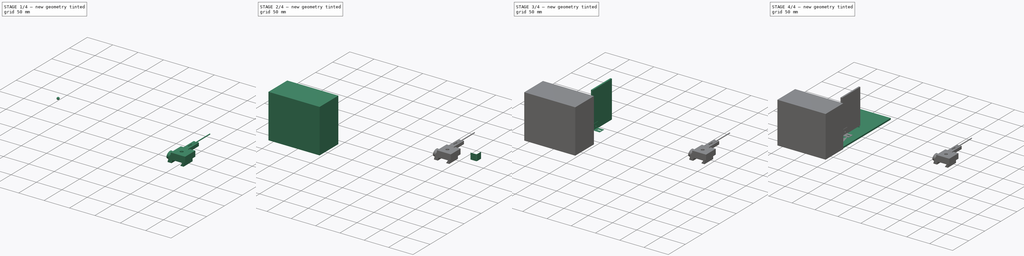
[diagram: build sequence overview — one tinted view per stage of 4, left to right]
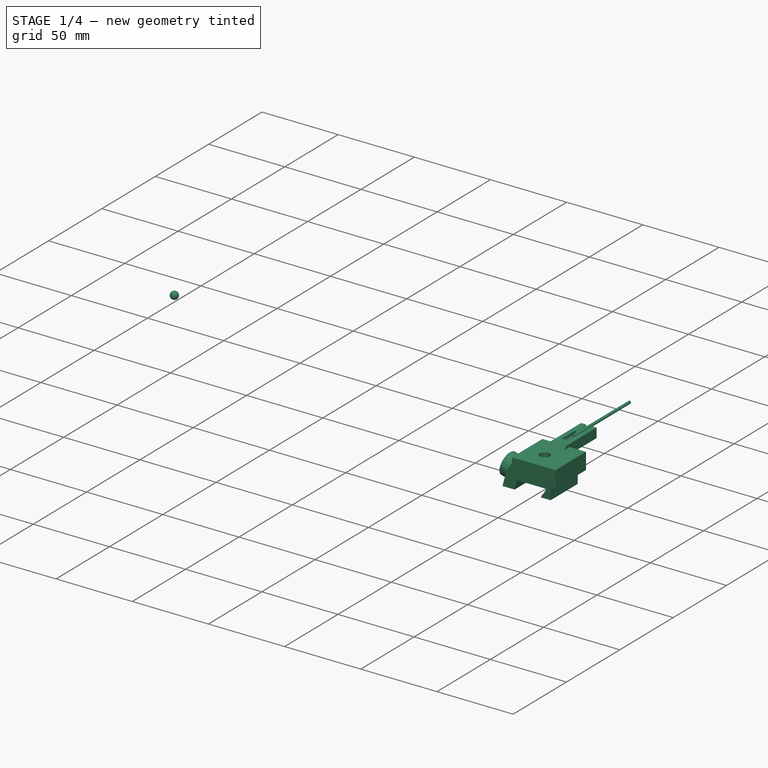
[diagram: stage 1 of 4 — iso view after this stage's code; geometry added in this stage tinted green]
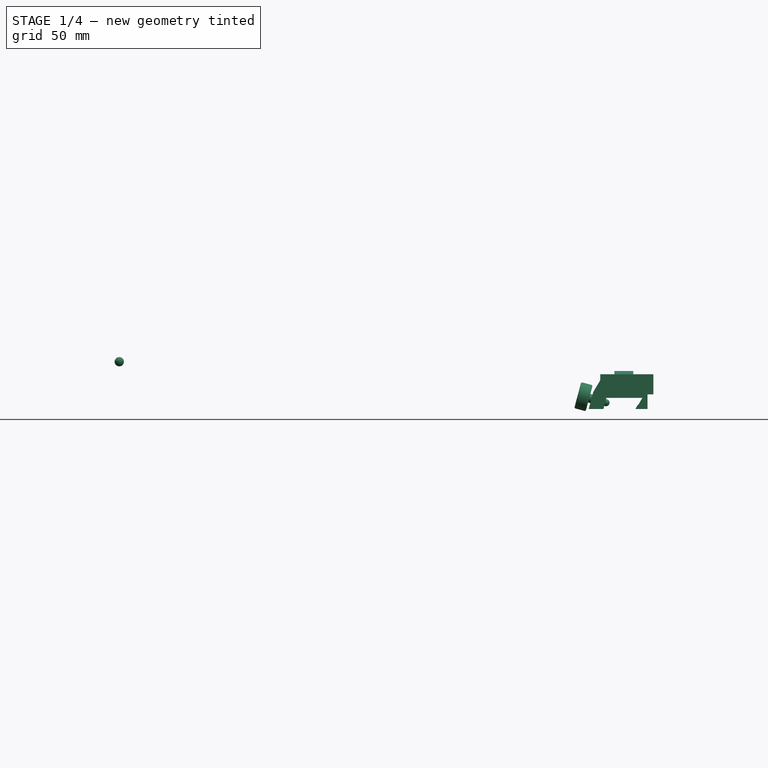
[diagram: stage 1 of 4 — front view after this stage's code; geometry added in this stage tinted green]
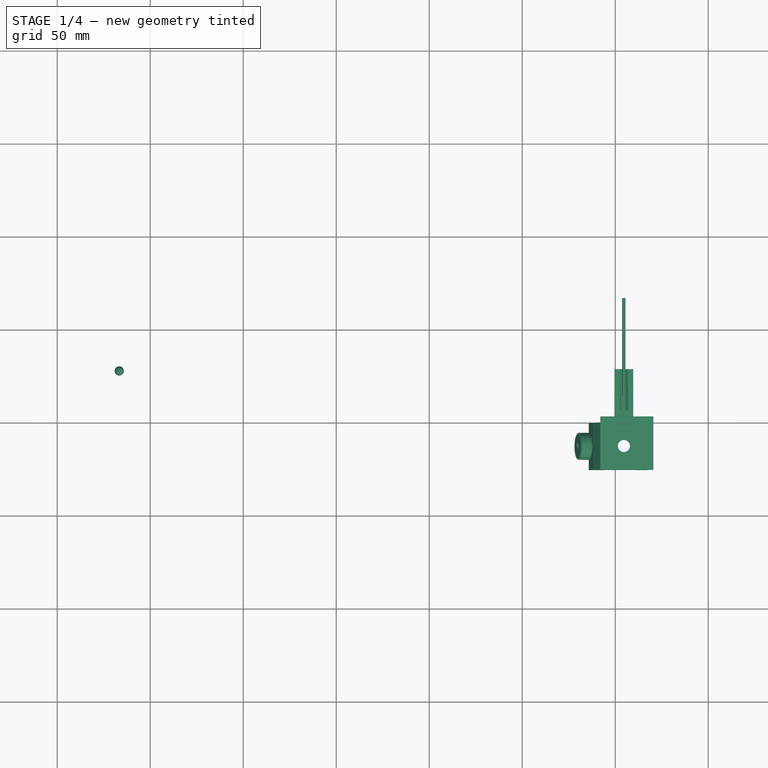
[diagram: stage 1 of 4 — top view after this stage's code; geometry added in this stage tinted green]
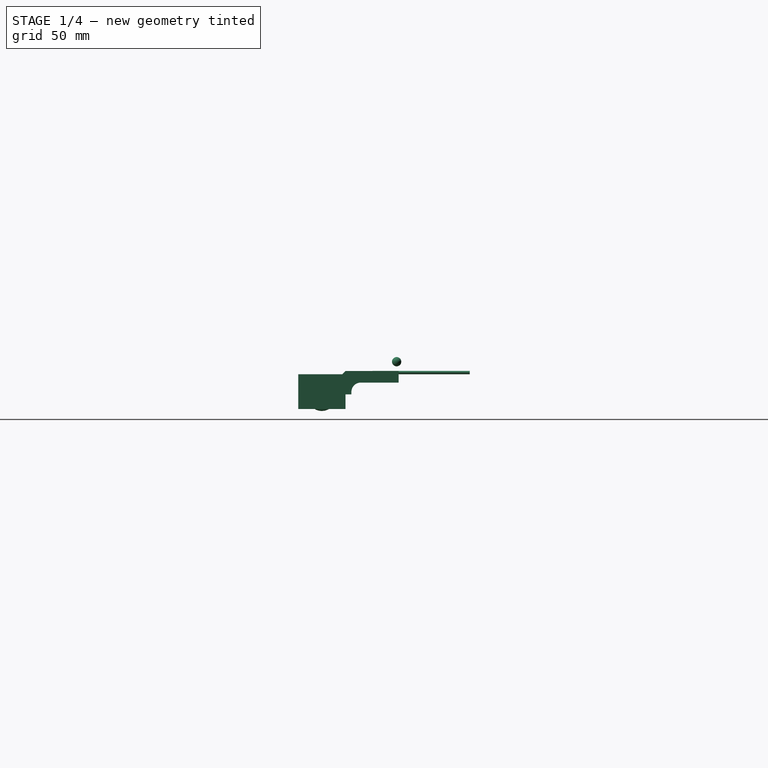
[diagram: stage 1 of 4 — right view after this stage's code; geometry added in this stage tinted green]
FCSTD DOCUMENT  (FreeCAD 0.17R13522 (Git))
Label: Rig base model
License: All rights reserved
LicenseURL: http://en.wikipedia.org/wiki/All_rights_reserved
objects: Part::Feature×37, App::Part×8, Sketcher::SketchObject×5, PartDesign::Pad×3, PartDesign::Body×3, Part::Sphere×3, PartDesign::Pocket×2, Part::MultiFuse×1, Part::Mirroring×1, Part::Box×1, Part::FeaturePython×1, Part::Compound×1
note: 63 computed .brp shape members not serialized (recipe doc carries the construction recipe); baked Part::Feature solids carry a one-line shape summary decoded from their .brp

FEATURE [Part::Feature] Part__Feature016010  label="0336-E0W002"
  Placement = pos=(304.8,25.4,-25.4) rot=(1,0,0;1.5708rad)
  shape: bbox 12.69 x 12.69 x 80.34 mm, 56 faces, 2 solids (baked)
FEATURE [Part::Feature] Part__Feature016011  label="0783-E0W002"
  Placement = pos=(304.8,12.7,55.626) rot=(0,0.707107,0.707107;3.14159rad)
  shape: bbox 19.05 x 76.2 x 9.525 mm, 875 faces (baked)
FEATURE [Part::Feature] Part__Feature016012  label="0811-E0W"
  Placement = pos=(285.75,0,54.102) rot=(0.57735,-0.57735,-0.57735;2.0944rad)
  shape: bbox 39.23 x 25.4 x 16.53 mm, 296 faces, 6 solids (baked)
FEATURE [Part::Feature] Pad003001  label="Lick spout holder"
  Placement = pos=(291.948,0,69.596) rot=(0.57735,0.57735,0.57735;2.0944rad)
  shape: bbox 28.58 x 53.98 x 12.61 mm, 35 faces (baked)
FEATURE [Sketcher::SketchObject] Sketch023  label="Spout"
  MapMode = 5
  Placement = pos=(28.575,0,0) rot=(0.57735,0.57735,0.57735;2.0944rad)
  expr: Constraints[0] = 0.071999999999999995" / 2
  sketch-geometry (1):
    g0: Circle CenterX=4.09329 CenterY=12.7 CenterZ=0 NormalX=0 NormalY=0 NormalZ=1 AngleXU=0 Radius=0.9144
  constraints (1):
    c: Radius(g0) = 0.9144
FEATURE [PartDesign::Pad] Pad003002
  Length = 14.2875
  Length2 = 38.1
  Placement = pos=(28.575,0,0) rot=(0.57735,0.57735,0.57735;2.0944rad)
  Profile = -> Sketch023
  Type = 4
  expr: Length = 2" + 1" / 16 - 1.5"
  expr: Length2 = 1.5"
FEATURE [Part::Sphere] Sphere002  label="LED"
  Angle1 = -90
  Angle2 = 90
  Angle3 = 360
  AttacherType = Attacher::AttachEngine3D
  Placement = pos=(33.3553,27.5082,79.5528) rot=(0,0,1;0rad)
  Radius = 2.5
  expr: Placement.Base.x = 5.5940000000000003" + 0.34510000000000002" * 2
  expr: Radius = 5mm / 2
FEATURE [Part::Feature] Part__Feature016013001  label="0335-E0W001"
  Placement = pos=(0.00434,-0.02736,-50.7568) rot=(1,0,0;1.5708rad)
  shape: bbox 12.69 x 12.69 x 54.94 mm, 56 faces, 2 solids (baked)
FEATURE [App::Part] Part005  label="Strobe light"
  Group = -> [Box001,Sphere002,Array,Part__Feature016013001]
  Origin = -> Origin009
  Placement = pos=(127,0,-38.1) rot=(0,0,-1;0.959931rad)
FEATURE [Part::Compound] Compound001  label="Spout mount compound"
  Links = -> [Part__Feature016012,Body002,Pad003001]
FEATURE [App::Part] Part003  label="Spout assembly"
  Group = -> [Part__Feature016010,Part__Feature016011,Part004,Body002,Part__Feature016012,Pad003001,Compound001]
  Origin = -> Origin006
  Placement = pos=(0,0,-35.56) rot=(0,0,1;0rad)
FEATURE [Part::Feature] Part__Mirroring001  label="Rig wall assembly (Mirror #1)001"
  Placement = pos=(0,0,0) rot=(0,0,1;3.14159rad)
  shape: bbox 15.9 x 57.07 x 76.12 mm, 23 faces, 2 solids (baked)
FEATURE [App::Part] Part  label="Platform"
  Group = -> [Pocket001001,Sphere,Sphere001,Body001,Fusion,Body,Extrude001,Part__Mirroring,Part__Mirroring001]
  Origin = -> Origin
  Placement = pos=(304.8,88.9,12.7) rot=(0,0,1;0rad)
FEATURE [App::Part] Part006  label="Rig"
  Group = -> [Part,MB1218,Part001,Part002,Part003,Part005]
  Origin = -> Origin010
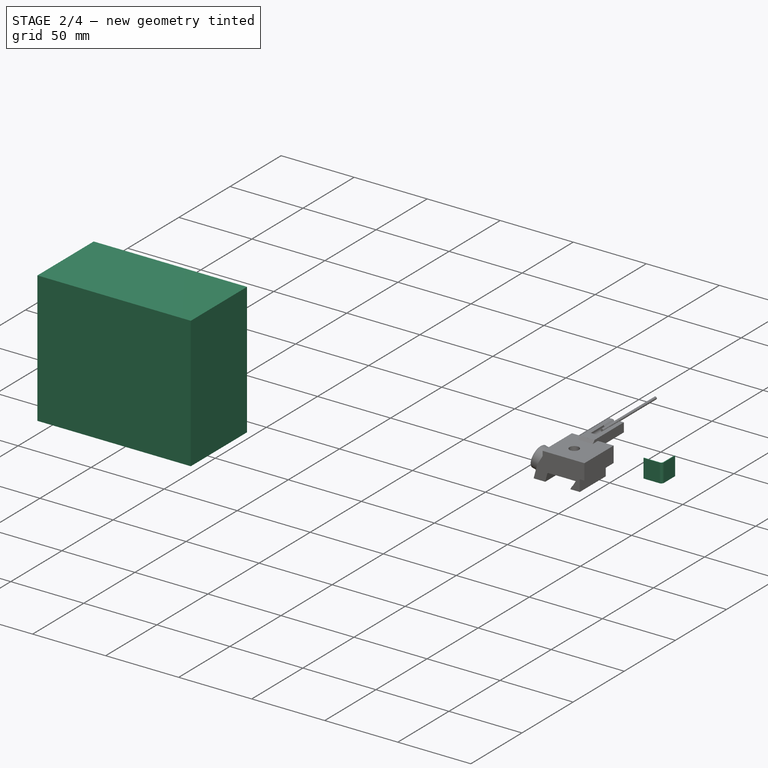
[diagram: stage 2 of 4 — iso view after this stage's code; geometry added in this stage tinted green]
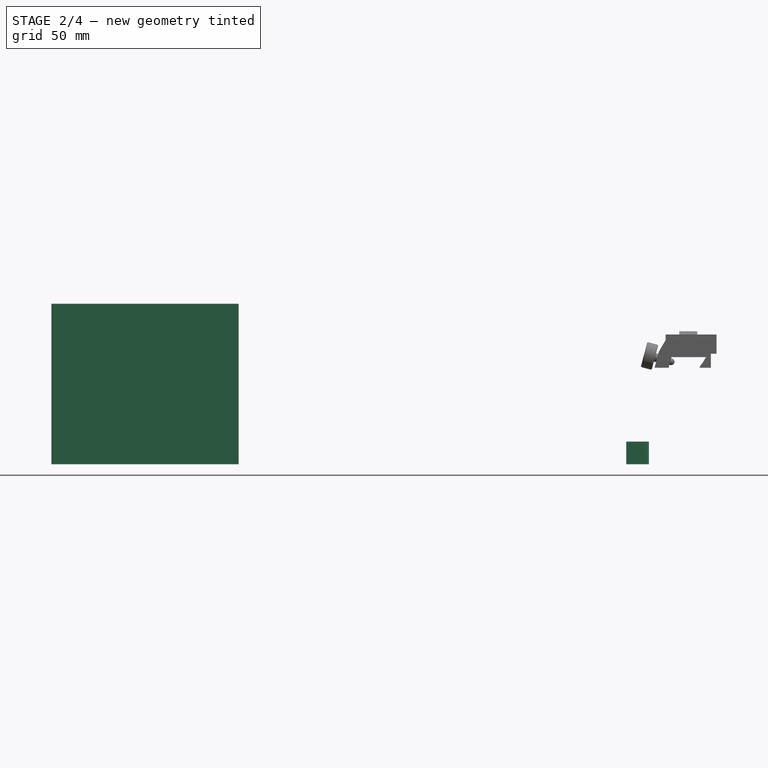
[diagram: stage 2 of 4 — front view after this stage's code; geometry added in this stage tinted green]
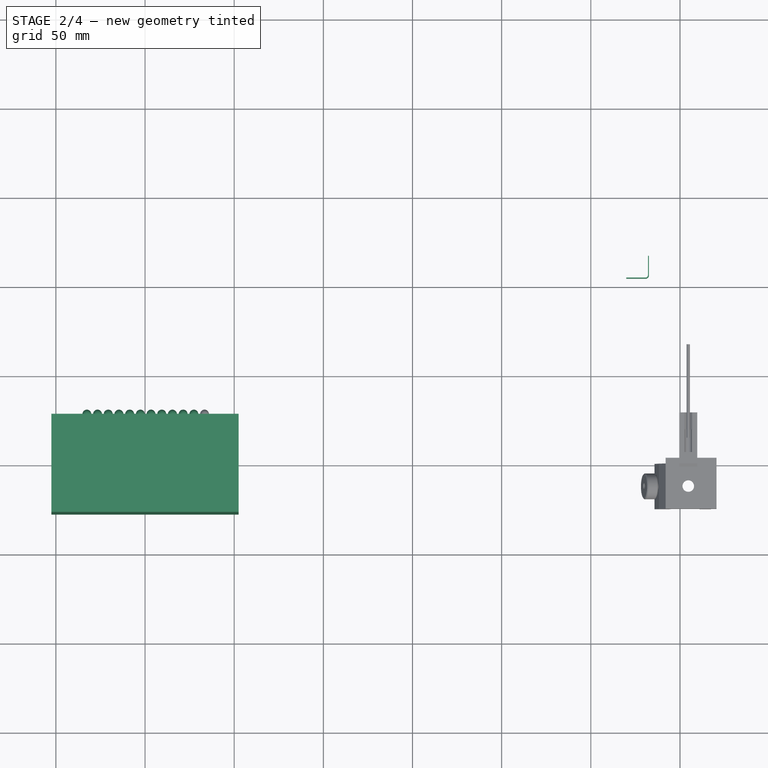
[diagram: stage 2 of 4 — top view after this stage's code; geometry added in this stage tinted green]
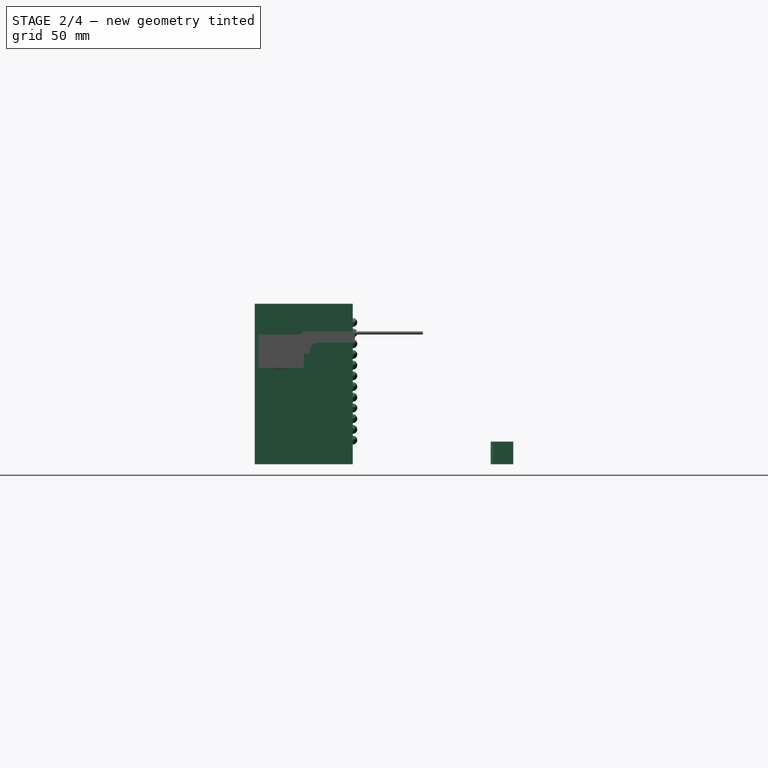
[diagram: stage 2 of 4 — right view after this stage's code; geometry added in this stage tinted green]
FEATURE [Part::Feature] Part__Feature  label="MB1218 - Aluminium Breadboard 304.8 x 457.2 x 12.7mm_MB3030_M-1"
  Placement = pos=(215.9,0,-139.7) rot=(0,0,1;0rad)
  shape: bbox 457.2 x 12.7 x 304.8 mm, 1603 faces (baked)
FEATURE [Part::Feature] Part__Feature001  label="0337-E0W"
  Placement = pos=(279.4,12.7,-127) rot=(0,0,1;0rad)
  shape: bbox 12.69 x 105.7 x 12.69 mm, 56 faces, 2 solids (baked)
  expr: Placement.Base.z = -5"
FEATURE [Part::Feature] Part__Feature002  label="0337-E0W001"
  Placement = pos=(279.4,12.7,-254) rot=(0,0,1;0rad)
  shape: bbox 12.69 x 105.7 x 12.69 mm, 56 faces, 2 solids (baked)
FEATURE [Part::Feature] Part__Feature003  label="0337-E0W002"
  Placement = pos=(330.2,12.7,-127) rot=(0,0,1;0rad)
  shape: bbox 12.69 x 105.7 x 12.69 mm, 56 faces, 2 solids (baked)
FEATURE [Part::Feature] Part__Feature004  label="0337-E0W003"
  Placement = pos=(330.2,12.7,-203.2) rot=(0,0,1;0rad)
  shape: bbox 12.69 x 105.7 x 12.69 mm, 56 faces, 2 solids (baked)
FEATURE [Part::Feature] Part__Feature005  label="0489-E0W"
  Placement = pos=(127,25.4,0) rot=(0,0,1;0rad)
  shape: bbox 25.01 x 25.41 x 35.42 mm, 362 faces, 6 solids (baked)
FEATURE [Part::Feature] Part__Feature006  label="0497-E0W"
  Placement = pos=(203.2,63.5,-177.8) rot=(0,0,1;0rad)
  shape: bbox 25.01 x 101.6 x 35.42 mm, 362 faces, 6 solids (baked)
FEATURE [Part::Feature] Part__Feature007  label="0497-E0W001"
  Placement = pos=(406.4,63.5,-177.8) rot=(0,0,1;0rad)
  shape: bbox 25.01 x 101.6 x 35.42 mm, 362 faces, 6 solids (baked)
FEATURE [Part::Feature] Part__Feature008  label="0495-E0W"
  Placement = pos=(177.8,50.8,-177.8) rot=(0,0,1;0rad)
  shape: bbox 25.01 x 76.21 x 35.42 mm, 362 faces, 6 solids (baked)
FEATURE [Part::Feature] Part__Feature009  label="0495-E0W001"
  Placement = pos=(431.8,50.8,-177.8) rot=(0,0,1;0rad)
  shape: bbox 25.01 x 76.21 x 35.42 mm, 362 faces, 6 solids (baked)
FEATURE [Part::Feature] Part__Feature010  label="0251-E0W"
  Placement = pos=(322.743,12.7,-23.2105) rot=(-1,0,0;1.5708rad)
  shape: bbox 69.95 x 32.77 x 62.23 mm, 3160 faces, 6 solids (baked)
  expr: Placement.Base.z = -1" + 0.086199999999999999"
  expr: Placement.Base.x = 1' - 0.29360000000000003" + 1"
FEATURE [Part::Feature] Part__Feature011  label="0495-E0W002"
  Placement = pos=(304.8,66.802,-25.4) rot=(0,0,1;0rad)
  shape: bbox 25.01 x 76.21 x 35.42 mm, 362 faces, 6 solids (baked)
FEATURE [Part::Feature] Part__Feature012  label="18785-E0W"
  Placement = pos=(50.8,203.2,-228.6) rot=(1,0,0;1.5708rad)
  shape: bbox 24.99 x 381 x 24.99 mm, 73 faces (baked)
FEATURE [App::Part] MB1218  label="Rig base"
  Group = -> [Part__Feature,Part__Feature001,Part__Feature002,Part__Feature003,Part__Feature004,Part__Feature005,Part__Feature006,Part__Feature007,Part__Feature008,Part__Feature009,Part__Feature010,Part__Feature011,Part__Feature012]
  Origin = -> Origin002
  Placement = pos=(0,0,-101.6) rot=(1,0,0;1.5708rad)
FEATURE [Part::Feature] Part__Feature013  label="0337-E0W004"
  Placement = pos=(0,25.4,-4.8768) rot=(-1,0,0;1.5708rad)
  shape: bbox 12.69 x 12.69 x 105.7 mm, 56 faces, 2 solids (baked)
FEATURE [Part::Feature] Part__Feature014  label="0336-E0W"
  Placement = pos=(25.4,25.4,-4.8768) rot=(0,0.707107,-0.707107;3.14159rad)
  shape: bbox 12.69 x 12.69 x 80.34 mm, 56 faces, 2 solids (baked)
FEATURE [Part::Feature] Part__Feature015  label="0812-E0W"
  Placement = pos=(76.2,-38.1,11.1252) rot=(0,0.707107,-0.707107;3.14159rad)
  shape: bbox 50.8 x 39.23 x 16.53 mm, 310 faces, 6 solids (baked)
FEATURE [Part::Feature] Part__Feature016  label="0785-E0W"
  Placement = pos=(25.4,-50.8,9.652) rot=(0.57735,-0.57735,0.57735;4.18879rad)
  shape: bbox 152.4 x 19.05 x 9.525 mm, 1483 faces (baked)
FEATURE [Part::Feature] Part__Feature017  label="0783-E0W"
  Placement = pos=(12.7,50.8,9.652) rot=(0.57735,0.57735,0.57735;2.0944rad)
  shape: bbox 76.2 x 19.05 x 9.525 mm, 875 faces (baked)
FEATURE [Part::Feature] Fillet001  label="Headfixing clamp"
  Placement = pos=(115.824,-50.8,-4.3942) rot=(0.707107,0.707107,0;3.14159rad)
  shape: bbox 68.58 x 19.05 x 6.35 mm, 34 faces (baked)
FEATURE [Part::Feature] Part__Feature016001  label="0785-E0W001"
  Placement = pos=(0,0,0) rot=(0,0.707107,0.707107;3.14159rad)
  shape: bbox 19.05 x 152.4 x 9.525 mm, 1483 faces (baked)
FEATURE [Part::Feature] Part__Feature016002  label="0785-E0W002"
  Placement = pos=(25.4,0,0) rot=(0,0.707107,0.707107;3.14159rad)
  shape: bbox 19.05 x 152.4 x 9.525 mm, 1483 faces (baked)
FEATURE [App::Part] Part001  label="Headfixing assembly"
  Group = -> [Part__Feature013,Part__Feature014,Part__Feature015,Part__Feature016,Part__Feature017,Fillet001,Part__Feature016001,Part__Feature016002]
  Origin = -> Origin003
  Placement = pos=(177.8,152.4,57.15) rot=(0,0,1;0rad)
FEATURE [Part::Feature] Fillet002  label="Headfixing clamp001"
  Placement = pos=(-90.424,-50.8,-4.3942) rot=(0.707107,-0.707107,0;3.14159rad)
  shape: bbox 68.58 x 19.05 x 6.35 mm, 34 faces (baked)
FEATURE [Part::Feature] Part__Feature016003  label="0785-E0W003"
  Placement = pos=(25.4,0,0) rot=(0,0.707107,0.707107;3.14159rad)
  shape: bbox 19.05 x 152.4 x 9.525 mm, 1483 faces (baked)
FEATURE [Part::Feature] Part__Feature016004  label="0785-E0W004"
  Placement = pos=(0,0,0) rot=(0,0.707107,0.707107;3.14159rad)
  shape: bbox 19.05 x 152.4 x 9.525 mm, 1483 faces (baked)
FEATURE [Part::Feature] Part__Feature016005  label="0783-E0W001"
  Placement = pos=(12.7,50.8,9.652) rot=(0.57735,0.57735,0.57735;2.0944rad)
  shape: bbox 76.2 x 19.05 x 9.525 mm, 875 faces (baked)
FEATURE [Part::Feature] Part__Feature016006  label="0337-E0W005"
  Placement = pos=(25.4,25.4,-4.8768) rot=(-1,0,0;1.5708rad)
  shape: bbox 12.69 x 12.69 x 105.7 mm, 56 faces, 2 solids (baked)
FEATURE [Part::Feature] Part__Feature016007  label="0336-E0W001"
  Placement = pos=(0,25.4,-4.8768) rot=(0,0.707107,-0.707107;3.14159rad)
  shape: bbox 12.69 x 12.69 x 80.34 mm, 56 faces, 2 solids (baked)
FEATURE [Part::Feature] Part__Feature016008  label="0785-E0W005"
  Placement = pos=(0,-50.8,9.652) rot=(0.57735,-0.57735,0.57735;4.18879rad)
  shape: bbox 152.4 x 19.05 x 9.525 mm, 1483 faces (baked)
FEATURE [Part::Feature] Part__Feature016009  label="0812-E0W001"
  Placement = pos=(-50.8,-38.1,11.1252) rot=(0,0.707107,-0.707107;3.14159rad)
  shape: bbox 50.8 x 39.23 x 16.53 mm, 310 faces, 6 solids (baked)
FEATURE [App::Part] Part002  label="Headfixing assembly001"
  Group = -> [Part__Feature016006,Part__Feature016007,Part__Feature016009,Part__Feature016008,Part__Feature016005,Fillet002,Part__Feature016004,Part__Feature016003]
  Origin = -> Origin004
  Placement = pos=(406.4,152.4,57.15) rot=(0,0,1;0rad)
FEATURE [Part::Feature] Extrude001  label="Rig wall"
  Placement = pos=(285.75,280.34,-114.3) rot=(0,1,0;1.5708rad)
  shape: bbox 3.175 x 76.12 x 57.07 mm, 8 faces (baked)
FEATURE [Sketcher::SketchObject] Sketch  label="Wall bracket"
  MapMode = 5
  sketch-geometry (8):
    g0: LineSegment StartX=280.768 StartY=105.309 StartZ=0 EndX=269.846 EndY=105.309 EndZ=0
    g1: LineSegment StartX=269.846 StartY=105.309 StartZ=0 EndX=269.846 EndY=104.801 EndZ=0
    g2: LineSegment StartX=269.846 StartY=104.801 StartZ=0 EndX=280.768 EndY=104.801 EndZ=0
    g3: LineSegment StartX=282.546 StartY=106.579 StartZ=0 EndX=282.546 EndY=117.501 EndZ=0
    g4: LineSegment StartX=282.038 StartY=117.501 StartZ=0 EndX=282.038 EndY=106.579 EndZ=0
    g5: ArcOfCircle CenterX=280.768 CenterY=106.579 CenterZ=0 NormalX=0 NormalY=0 NormalZ=1 AngleXU=0 Radius=1.27 StartAngle=4.71239 EndAngle=6.28319
    g6: ArcOfCircle CenterX=280.768 CenterY=106.579 CenterZ=0 NormalX=0 NormalY=0 NormalZ=1 AngleXU=0 Radius=1.778 StartAngle=4.71239 EndAngle=6.28319
    g7: LineSegment StartX=282.038 StartY=117.501 StartZ=0 EndX=282.546 EndY=117.501 EndZ=0
  constraints (24):
    c: Coincident(g0,g1)
    c: Coincident(g1,g2)
    c: Coincident(g3,g6)
    c: Coincident(g4,g5)
    c: Coincident(g0,g5)
    c: Coincident(g2,g6)
    c: Horizontal(g2)
    c: Vertical(g3)
    c: Horizontal(g0)
    c: Vertical(g4)
    c: Vertical(g1)
    c: DistanceX(g2,g6) = 0
    c: DistanceY(g6,g3) = 0
    c: DistanceX(g5,g0) = 0
    c: DistanceY(g1,g1) = 0.508
    c: DistanceX(g2,g0) = 0
    c: DistanceY(g1,g3) = 12.7
    c: DistanceX(g1,g3) = 12.7
    c: Coincident(g3,g7)
    c: Coincident(g4,g7)
    c: Horizontal(g7)
    c: Equal(g7,g1)
    c: DistanceY(g3,g4) = 0
    c: Radius(g5) = 1.27
FEATURE [PartDesign::Pad] Pad001
  Length = 12.7
  Length2 = 99.9998
  Profile = -> Sketch
  Type = 0
FEATURE [PartDesign::Body] Body002  label="Spout001"
  Group = -> [Sketch023,Pad003002]
  Origin = -> Origin007
  Placement = pos=(291.948,23.9522,69.596) rot=(0.57735,0.57735,0.57735;2.0944rad)
  Tip = -> Pad003002
FEATURE [App::Part] Part004  label="Spout mount"
  Origin = -> Origin008
  Placement = pos=(0,30.1244,0) rot=(0,0,1;0rad)
FEATURE [Part::Box] Box001  label="Cube001"
  AttacherType = Attacher::AttachEngine3D
  Height = 90
  Length = 105
  Placement = pos=(-52.5,-27.5,0) rot=(0,0,1;0rad)
  Width = 55
  expr: Placement.Base.x = -52.5mm
FEATURE [Part::FeaturePython] Array  # Draft array (typed FeaturePython)
  Angle = 360
  ArrayType = 0
  Axis = (0,0,1)
  Base = -> Sphere002
  Center = (0,0,0)
  Fuse = false
  IntervalAxis = (0,0,0)
  IntervalX = (-5.99948,0,0)
  IntervalY = (0,0,0)
  IntervalZ = (0,0,-6)
  NumberPolar = 1
  NumberX = 12
  NumberY = 1
  NumberZ = 12
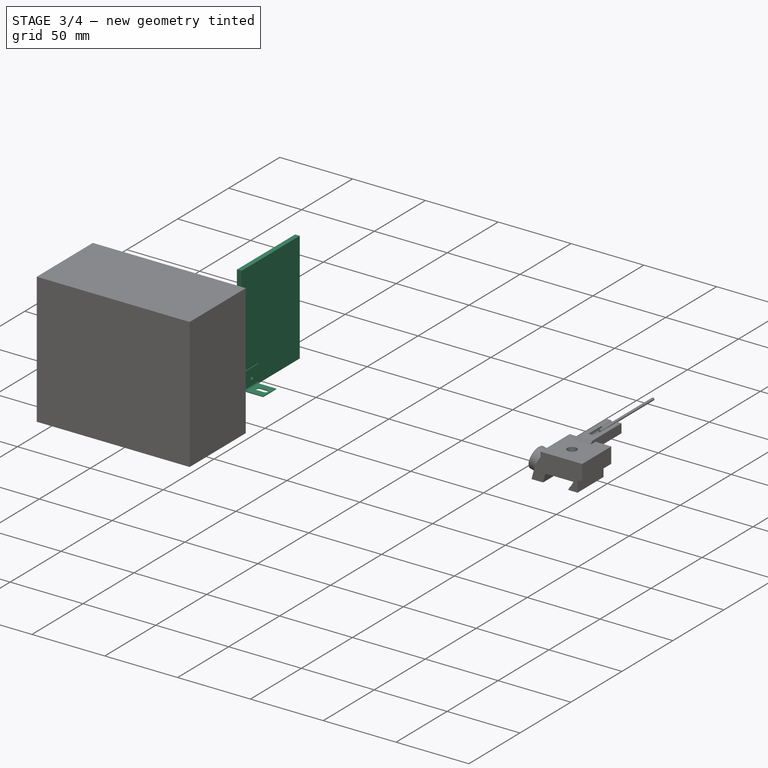
[diagram: stage 3 of 4 — iso view after this stage's code; geometry added in this stage tinted green]
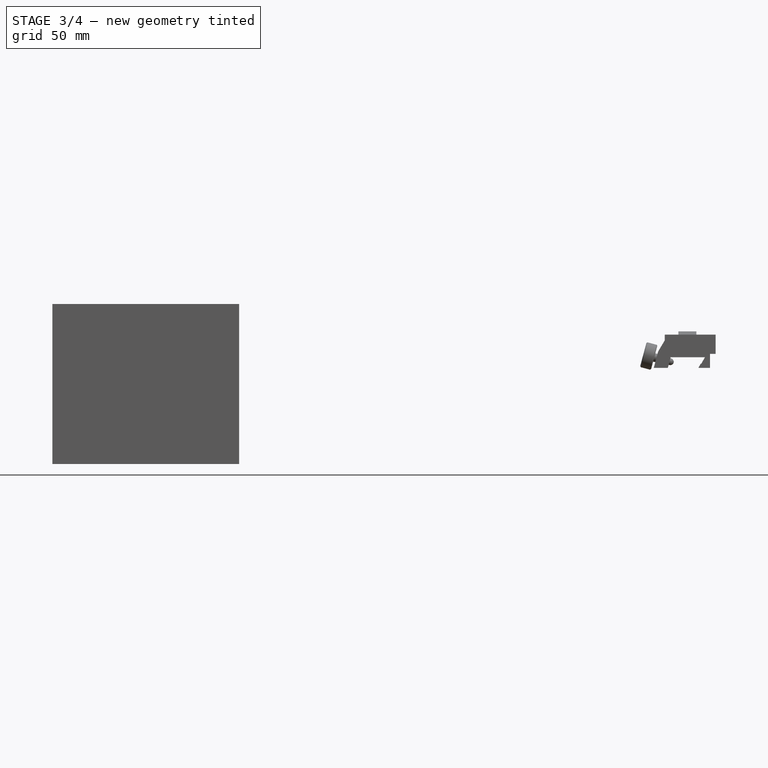
[diagram: stage 3 of 4 — front view after this stage's code; geometry added in this stage tinted green]
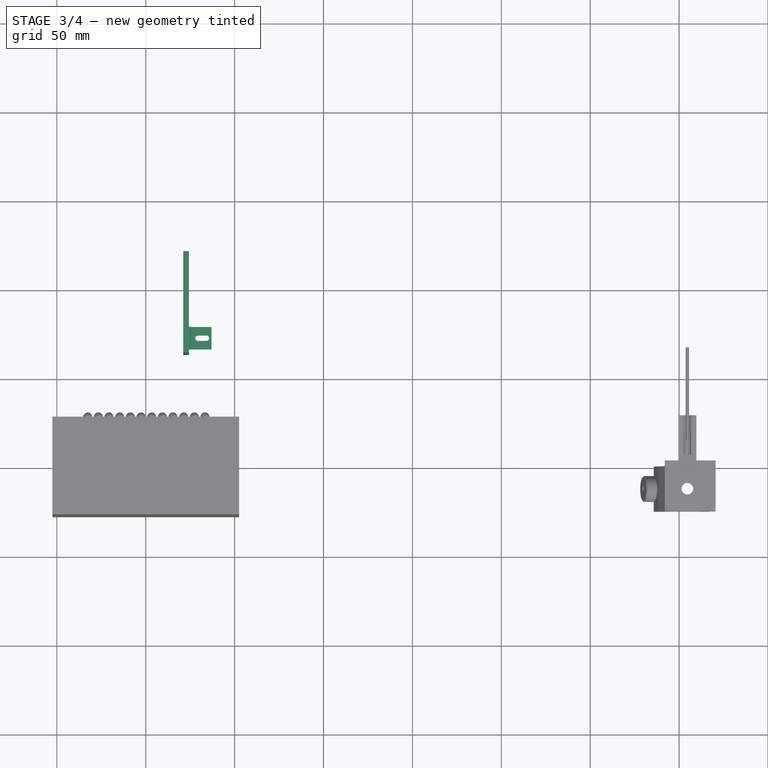
[diagram: stage 3 of 4 — top view after this stage's code; geometry added in this stage tinted green]
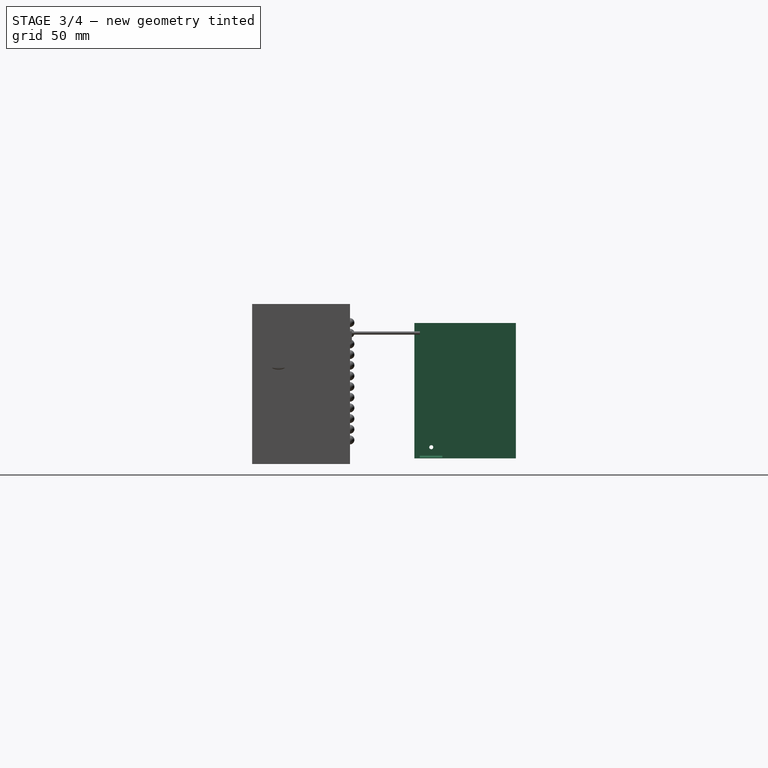
[diagram: stage 3 of 4 — right view after this stage's code; geometry added in this stage tinted green]
FEATURE [Sketcher::SketchObject] Sketch021  label="Bracket slot"
  ExternalGeometry = -> [Pad001]
  MapMode = 5
  Placement = pos=(0,105.309,0) rot=(0,0.707107,0.707107;3.14159rad)
  Support = -> [Pad001]
  sketch-geometry (5):
    g0: ArcOfCircle CenterX=-277.466 CenterY=6.35 CenterZ=0 NormalX=0 NormalY=0 NormalZ=1 AngleXU=0 Radius=1.50515 StartAngle=1.5708 EndAngle=4.71239
    g1: ArcOfCircle CenterX=-272.688 CenterY=6.35 CenterZ=0 NormalX=0 NormalY=0 NormalZ=1 AngleXU=0 Radius=1.50515 StartAngle=4.71239 EndAngle=7.85398
    g2: LineSegment StartX=-277.466 StartY=4.84485 StartZ=0 EndX=-272.688 EndY=4.84485 EndZ=0
    g3: LineSegment StartX=-277.466 StartY=7.85515 StartZ=0 EndX=-272.688 EndY=7.85515 EndZ=0
    g4: LineSegment [constr] StartX=-269.846 StartY=6.35 StartZ=0 EndX=-282.546 EndY=6.35 EndZ=0
  constraints (11):
    c: Tangent(g0,g3) = 1.5708
    c: Tangent(g0,g2) = -1.5708
    c: Tangent(g2,g1) = -1.5708
    c: Tangent(g3,g1) = 1.5708
    c: Horizontal(g2)
    c: Equal(g0,g1)
    c: PointOnObject(g4,g-3)
    c: Symmetric(g-3,g-3,g4)
    c: Distance(g4) = 12.7
    c: PointOnObject(g0,g4)
    c: DistanceX(g0,g4) = 7.62
FEATURE [PartDesign::Pocket] Pocket
  BaseFeature = -> Pad001
  Length = 5.00126
  Length2 = 99.9998
  Profile = -> Sketch021
  Type = 1
FEATURE [Sketcher::SketchObject] Sketch022  label="Bracket hole"
  ExternalGeometry = -> [Pocket]
  MapMode = 5
  Placement = pos=(282.038,0,0) rot=(0.57735,-0.57735,-0.57735;2.0944rad)
  Support = -> [Pocket]
  sketch-geometry (1):
    g0: Circle CenterX=-111.062 CenterY=6.20776 CenterZ=0 NormalX=0 NormalY=0 NormalZ=1 AngleXU=0 Radius=1.1626
  constraints (3):
    c: DistanceX(g-3,g0) = 6.4389
    c: DistanceY(g0,g-3) = 6.49224
    c: Radius(g0) = 1.1626
FEATURE [PartDesign::Pocket] Pocket001002
  BaseFeature = -> Pocket
  Length = 5.00126
  Length2 = 99.9998
  Profile = -> Sketch022
  Type = 1
FEATURE [PartDesign::Body] Body  label="Rig wall bracket"
  Group = -> [Sketch,Pad001,Sketch021,Pocket,Sketch022,Pocket001002]
  Origin = -> Origin005
  Placement = pos=(0,0,-166.497) rot=(0,0,1;0rad)
  Tip = -> Pocket001002
FEATURE [Part::MultiFuse] Fusion  label="Rig wall assembly"
  Placement = pos=(-306.832,-87.0458,-101.6) rot=(1,0,0;1.5708rad)
  Shapes = -> [Extrude001,Body]
FEATURE [Part::Mirroring] Part__Mirroring  label="Rig wall assembly (Mirror #1)"
  Base = (333.961,-3.05176e-05,-180.999)
  Normal = (0,1,-1.19209e-07)
  Placement = pos=(0,0,0) rot=(0,0,1;3.14159rad)
  Source = -> Fusion
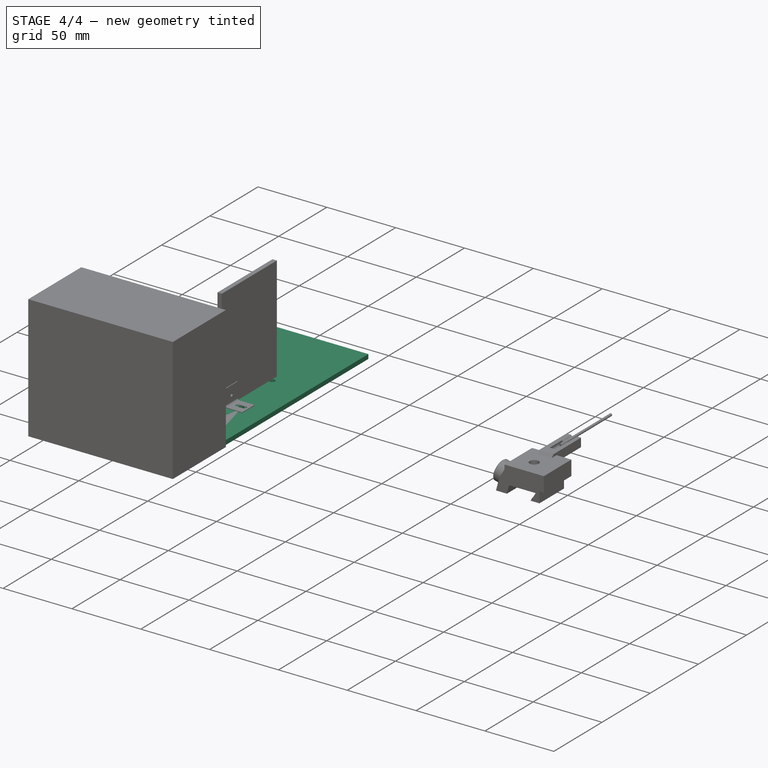
[diagram: stage 4 of 4 — iso view after this stage's code; geometry added in this stage tinted green]
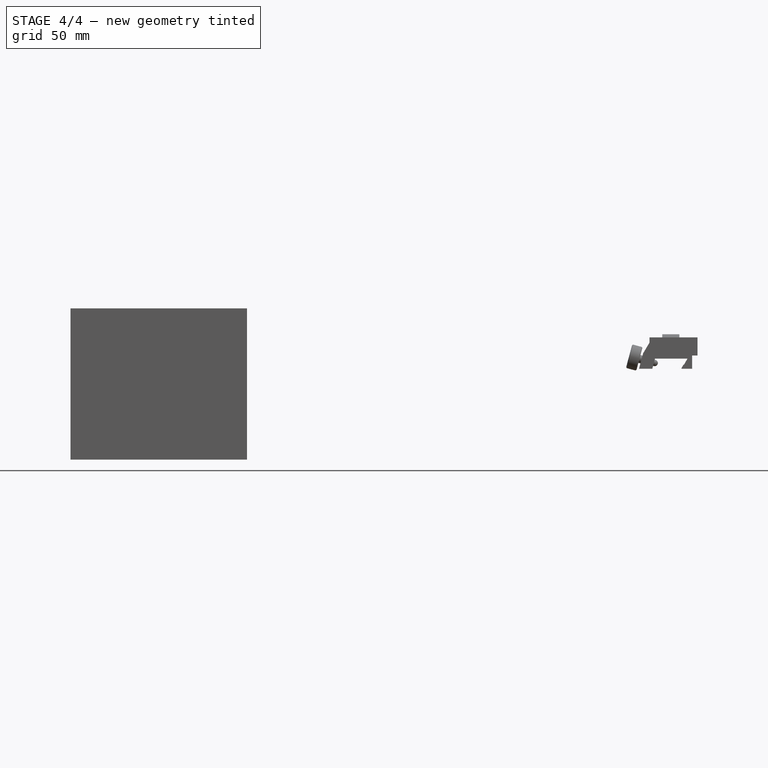
[diagram: stage 4 of 4 — front view after this stage's code; geometry added in this stage tinted green]
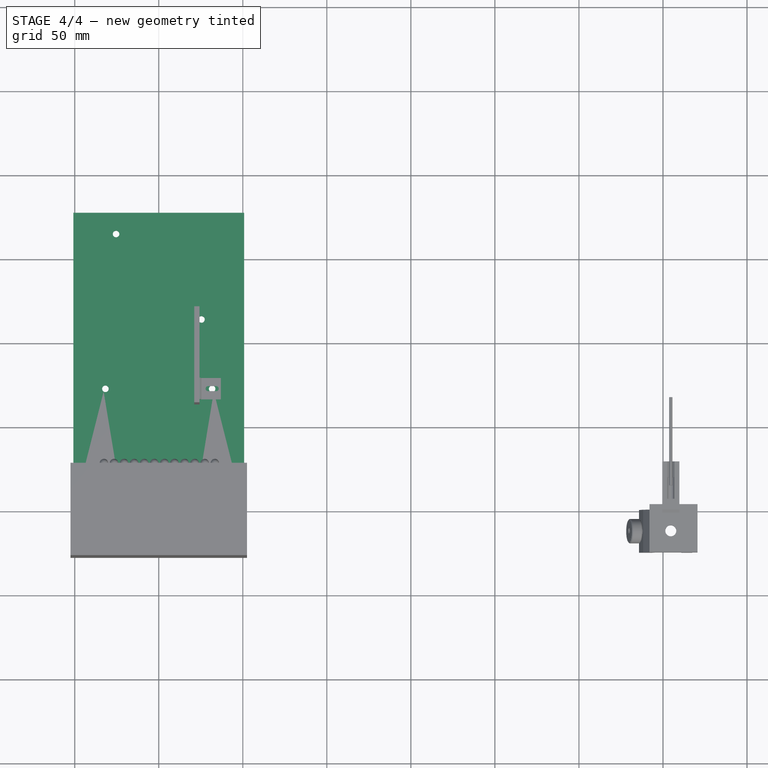
[diagram: stage 4 of 4 — top view after this stage's code; geometry added in this stage tinted green]
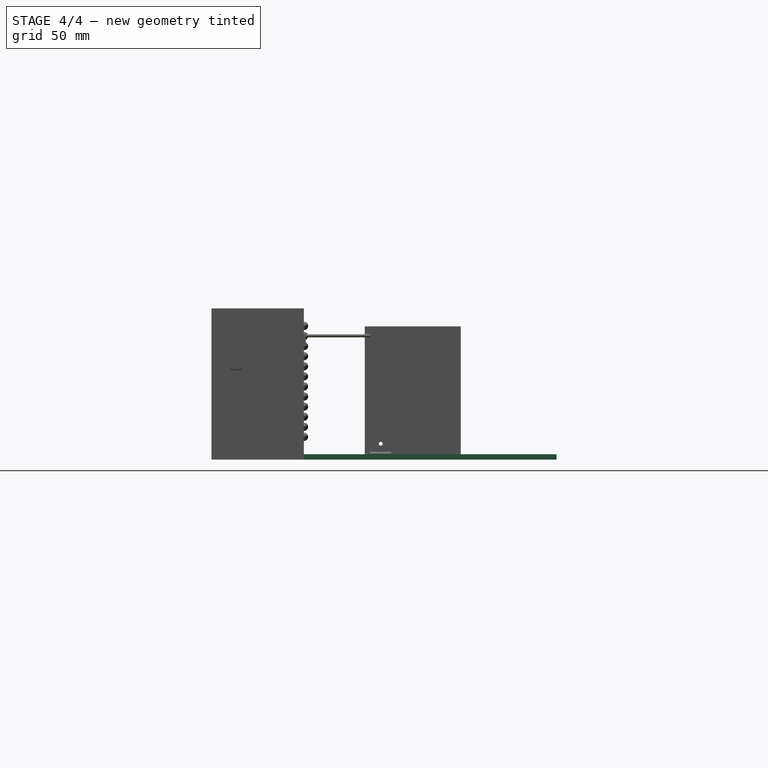
[diagram: stage 4 of 4 — right view after this stage's code; geometry added in this stage tinted green]
FEATURE [Part::Feature] Pocket001001  label="Pocket002"
  Placement = pos=(-28.956,2.54,-3.175) rot=(0,0,1;0rad)
  shape: bbox 57.15 x 35.56 x 22.71 mm, 29 faces (baked)
FEATURE [Sketcher::SketchObject] Sketch020  label="Rig platform"
  MapMode = 5
  Support = -> [XY_Plane001]
  sketch-geometry (14):
    g0: LineSegment StartX=-50.8 StartY=0 StartZ=0 EndX=-50.8 EndY=177.8 EndZ=0
    g1: LineSegment StartX=-50.8 StartY=177.8 StartZ=0 EndX=50.8 EndY=177.8 EndZ=0
    g2: LineSegment StartX=50.8 StartY=177.8 StartZ=0 EndX=50.8 EndY=0 EndZ=0
    g3: LineSegment StartX=50.8 StartY=0 StartZ=0 EndX=12.7 EndY=0 EndZ=0
    g4: LineSegment StartX=12.7 StartY=0 StartZ=0 EndX=12.7 EndY=20.32 EndZ=0
    g5: LineSegment StartX=12.7 StartY=20.32 StartZ=0 EndX=-12.7 EndY=20.32 EndZ=0
    g6: LineSegment StartX=-12.7 StartY=20.32 StartZ=0 EndX=-12.7 EndY=0 EndZ=0
    g7: LineSegment StartX=-12.7 StartY=0 StartZ=0 EndX=-50.8 EndY=0 EndZ=0
    g8: Circle CenterX=-25.4 CenterY=165.125 CenterZ=0 NormalX=0 NormalY=0 NormalZ=1 AngleXU=0 Radius=1.93948
    g9: Circle CenterX=25.4 CenterY=114.3 CenterZ=0 NormalX=0 NormalY=0 NormalZ=1 AngleXU=0 Radius=1.93948
    g10: Circle CenterX=-31.75 CenterY=73.025 CenterZ=0 NormalX=0 NormalY=0 NormalZ=1 AngleXU=0 Radius=1.93948
    g11: Circle CenterX=31.75 CenterY=73.025 CenterZ=0 NormalX=0 NormalY=0 NormalZ=1 AngleXU=0 Radius=1.93948
    g12: Circle CenterX=-22.225 CenterY=12.7 CenterZ=0 NormalX=0 NormalY=0 NormalZ=1 AngleXU=0 Radius=1.28114
    g13: Circle CenterX=22.225 CenterY=12.7 CenterZ=0 NormalX=0 NormalY=0 NormalZ=1 AngleXU=0 Radius=1.28114
  constraints (42):
    c: Coincident(g0,g1)
    c: Coincident(g1,g2)
    c: Coincident(g2,g3)
    c: Coincident(g3,g4)
    c: Coincident(g4,g5)
    c: Coincident(g5,g6)
    c: Coincident(g6,g7)
    c: Distance(g1) = 101.6
    c: Distance(g0) = 177.8
    c: Vertical(g0)
    c: Horizontal(g1)
    c: Horizontal(g5)
    c: Vertical(g6)
    c: Vertical(g4)
    c: Horizontal(g7)
    c: Horizontal(g3)
    c: Vertical(g2)
    c: Equal(g7,g3)
    c: Equal(g6,g4)
    c: Coincident(g0,g7)
    c: Distance(g7) = 38.1
    c: Distance(g6) = 20.32
    c: DistanceX(g0,g8) = 25.4
    c: DistanceY(g8,g0) = 12.6746
    c: Radius(g8) = 1.93948
    c: Equal(g8,g9) = 1.93948
    c: Equal(g8,g10) = 1.93948
    c: Equal(g8,g11) = 1.93948
    c: DistanceX(g0,g9) = 76.2
    c: DistanceY(g9,g0) = 63.5
    c: DistanceX(g0,g10) = 19.05
    c: DistanceY(g10,g0) = 104.775
    c: DistanceX(g0,g11) = 82.55
    c: DistanceY(g11,g0) = 104.775
    c: Radius(g12) = 1.28114
    c: DistanceX(g0,g12) = 28.575
    c: DistanceY(g12,g0) = 165.1
    c: Equal(g12,g13) = 1.28114
    c: DistanceX(g12,g13) = 44.45
    c: DistanceY(g13,g12) = 0
    c: DistanceY(g6) = 0
    c: DistanceX(g6,g-1) = 12.7
FEATURE [PartDesign::Pad] Pad
  Length = 3.175
  Length2 = 99.9998
  Profile = -> Sketch020
  Type = 0
FEATURE [PartDesign::Body] Body001
  Group = -> [Sketch020,Pad]
  Origin = -> Origin001
  Tip = -> Pad
FEATURE [Part::Sphere] Sphere
  Angle1 = -90
  Angle2 = 90
  Angle3 = 360
  AttacherType = Attacher::AttachEngine3D
  Placement = pos=(-6.7056,12.7,15.9766) rot=(0,0,1;0rad)
  Radius = 1.5875
  expr: Radius = 0.125" / 2
FEATURE [Part::Sphere] Sphere001
  Angle1 = -90
  Angle2 = 90
  Angle3 = 360
  AttacherType = Attacher::AttachEngine3D
  Placement = pos=(5.969,12.7,15.9766) rot=(0,0,1;0rad)
  Radius = 1.5875
  expr: Radius = 0.125" / 2
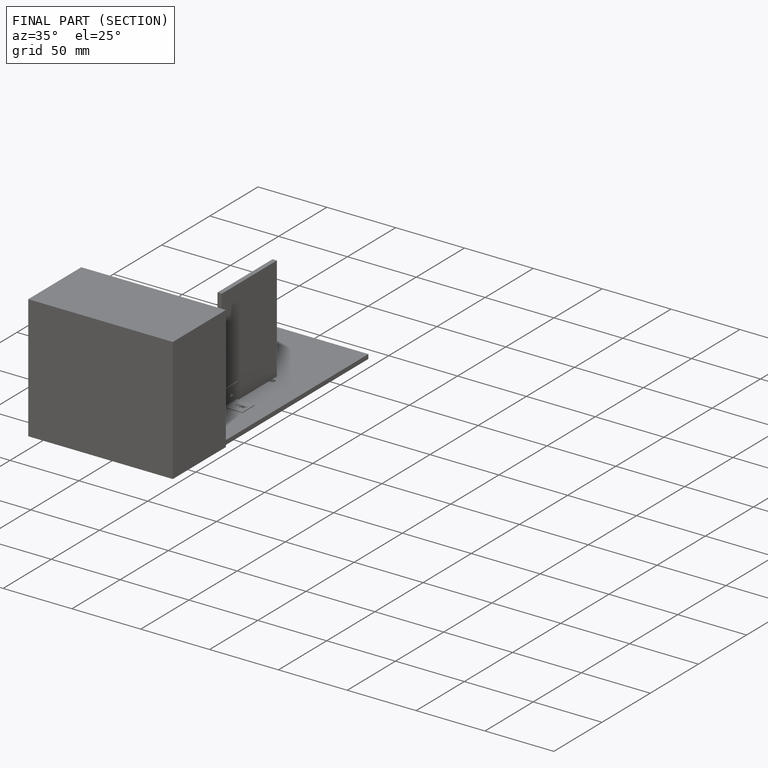
[diagram: finished part — half-section view (interior)]
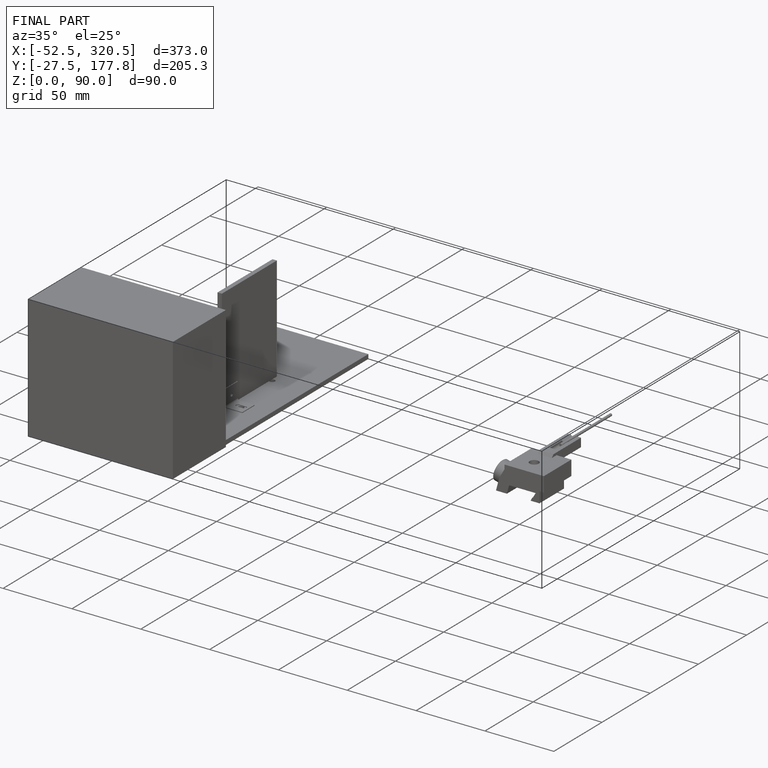
[diagram: finished part — iso view with bounding-box wireframe]
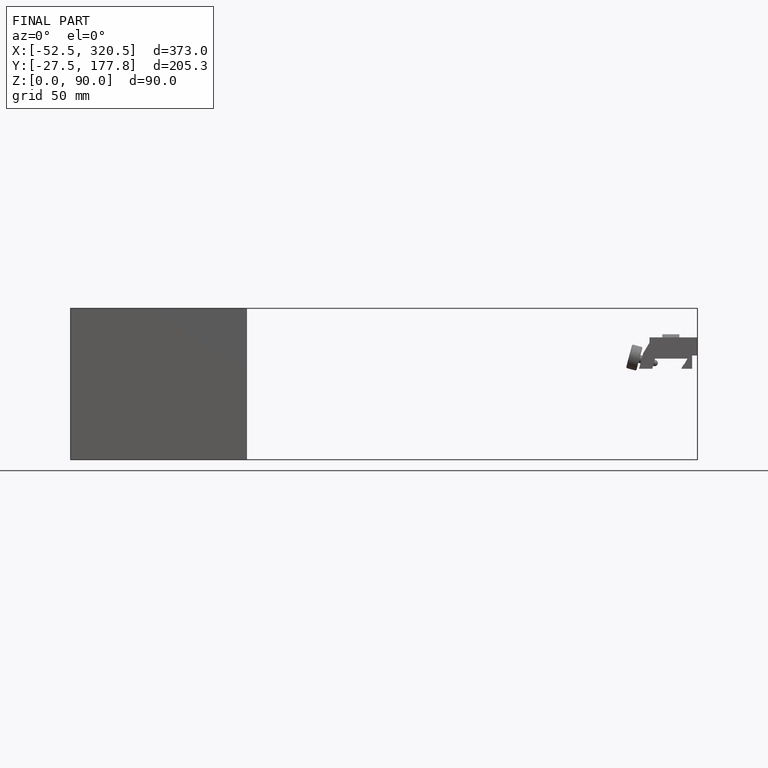
[diagram: finished part — front view with bounding-box wireframe]
